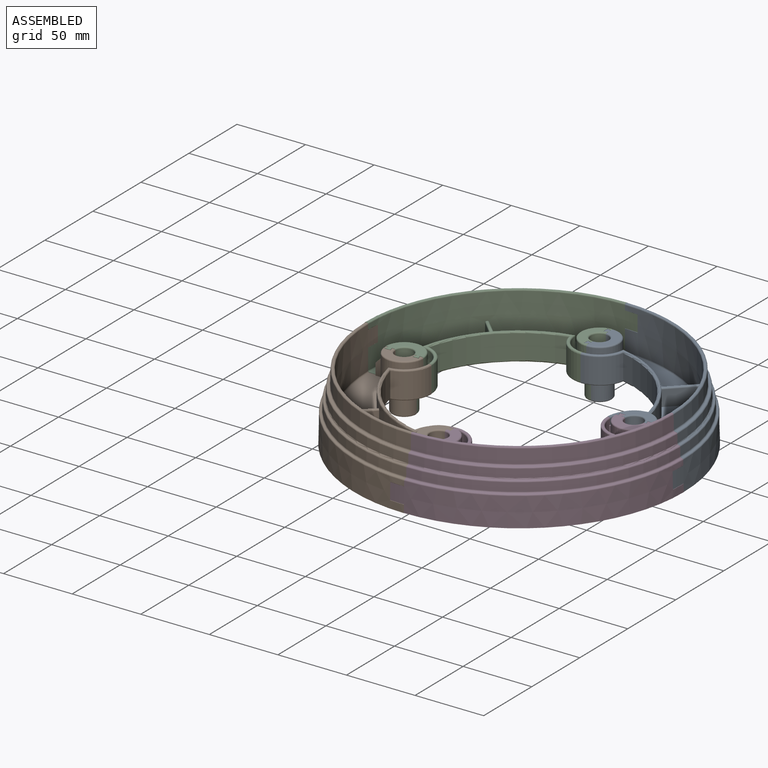
[diagram: assembled view]
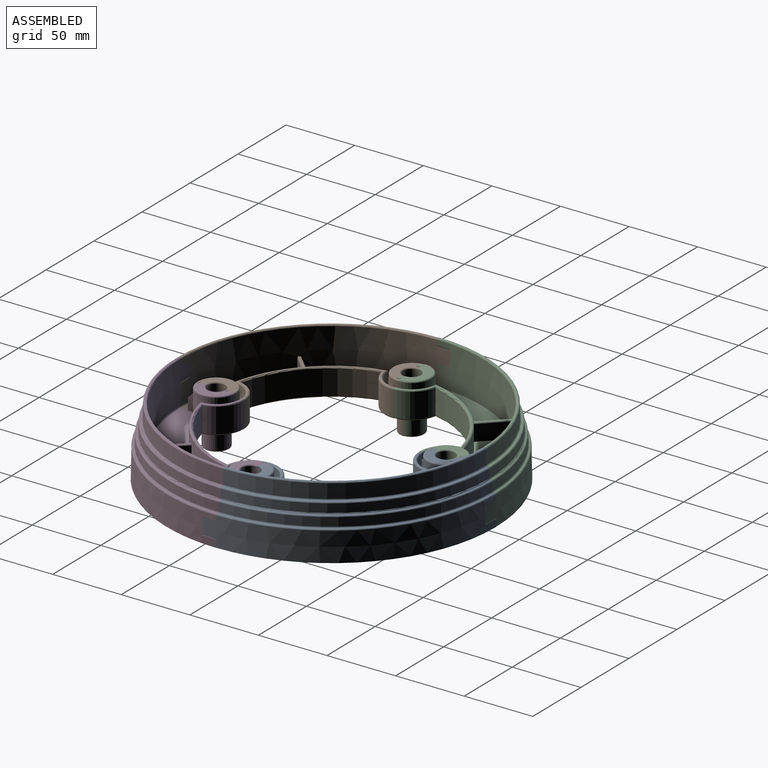
[diagram: assembled view, second angle]
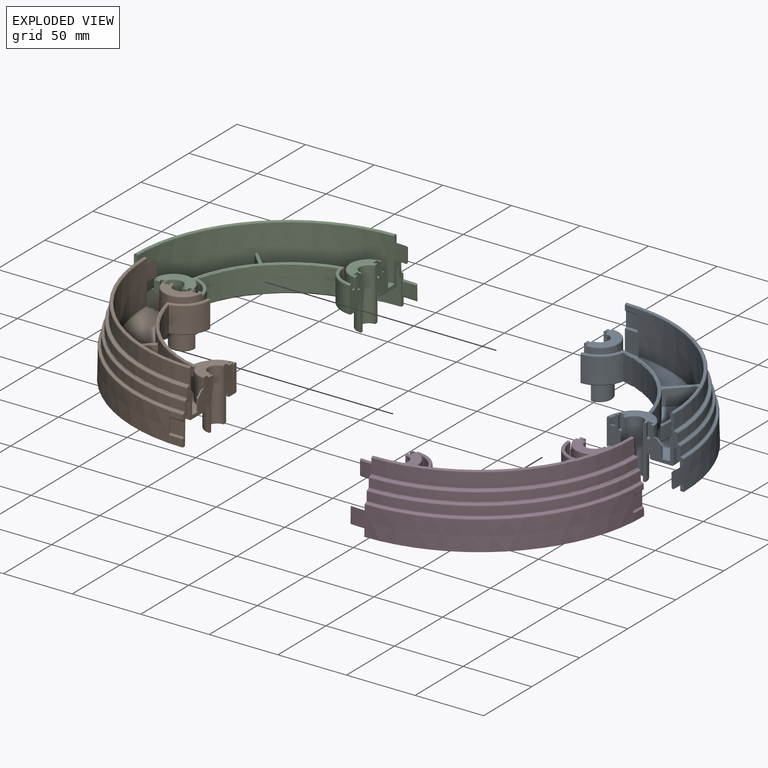
[diagram: exploded view]
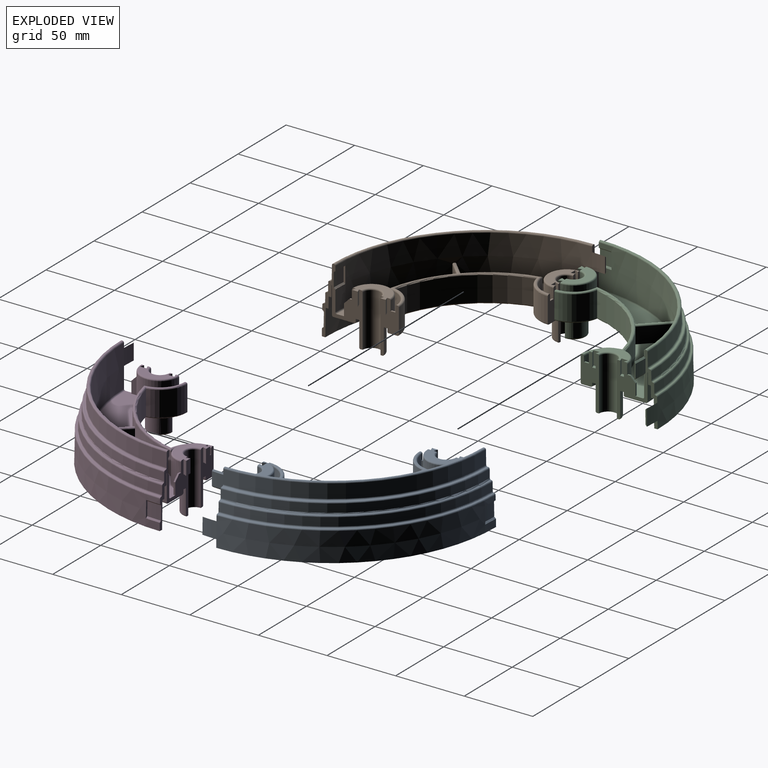
[diagram: exploded view, second angle]
ASSEMBLY  parts=4 mates=3
PART A: 144 faces, bbox 140x132.2x51 mm
  f0: plane 51x29.75mm, normal (0,-1,0), area 447.5mm2, adj f3,f4,f7,f14,f15,f16,f17,f18
  f1: cylinder r=11.5mm len=23mm, axis (0,0,-1), area 104.2mm2, adj f6,f12,f60,f61,f63,f64,f65,f66
  f2: cylinder r=9mm len=19mm, axis (0,0,-1), area 533.1mm2, adj f6,f12,f60,f61,f63,f64,f65,f66
  f3: cylinder r=11.5mm len=23mm, axis (0,0,-1), area 104.2mm2, adj f0,f5,f58,f59,f62,f68,f69,f70
  f4: cylinder r=9mm len=19mm, axis (0,0,-1), area 533.1mm2, adj f0,f5,f58,f59,f62,f68,f69,f70
  f5: plane 39x13.4mm, normal (0,-1,0), area 281.9mm2, adj f3,f4,f8,f13,f14,f32,f37,f38
  f6: plane 39x13.4mm, normal (1,0,0), area 279.7mm2, adj f1,f2,f13,f14,f33,f34,f39,f40
  f7: cone r=110.1mm half-angle=90deg, axis (0,0,1), area 1650.6mm2, adj f0,f10,f35,f37,f41,f42,f46,f92
  f8: cylinder r=17.5mm len=17.49mm, axis (0,0,-1), area 428.6mm2, adj f5,f10,f35,f44,f45,f89
  f9: cone r=110.1mm half-angle=90deg, axis (0,0,1), area 1650.6mm2, adj f10,f12,f36,f39,f47,f51,f52,f78
  f10: cylinder r=85.1mm len=65.79mm, axis (0,0,-1), area 1593.5mm2, adj f7,f8,f9,f33,f46,f47,f48,f79
  f11: cylinder r=82.6mm len=60.56mm, axis (0,0,-1), area 1620.5mm2, adj f32,f34,f85,f88
  f12: plane 51x29.75mm, normal (1,0,0), area 450.5mm2, adj f1,f2,f9,f14,f15,f16,f17,f18
  f13: plane 82.06x82.06mm, normal (0,0,1), area 74.4mm2, adj f5,f6,f83,f84,f85,f89,f90,f91
  f14: plane 111.6x111.6mm, normal (0,0,-1), area 4332.1mm2, adj f0,f5,f6,f12,f76,f77,f86,f87
  f15: cylinder r=112.6mm len=112.6mm, axis (0,0,-1), area 3449.4mm2, adj f0,f12,f16,f101
  f16: plane 112.86x112.86mm, normal (0,0,-1), area 46.1mm2, adj f0,f12,f15,f17
  f17: cone r=112.86mm half-angle=1deg, axis (0,0,-1), area 1419.2mm2, adj f0,f12,f16,f18
  f18: plane 115x115mm, normal (0,0,-1), area 358.2mm2, adj f0,f12,f17,f19
  f19: cone r=115mm half-angle=1deg, axis (0,0,-1), area 1447.6mm2, adj f0,f12,f18,f20
  f20: plane 117.15x117.15mm, normal (0,0,-1), area 364.9mm2, adj f0,f12,f19,f21
  f21: cone r=117.15mm half-angle=1deg, axis (0,0,-1), area 3593.6mm2, adj f0,f12,f20,f22
  f22: plane 120x120mm, normal (0,0,-1), area 466.4mm2, adj f0,f12,f21,f23
  f23: cone r=120mm half-angle=1deg, axis (0,0,-1), area 3953.4mm2, adj f0,f12,f22,f100,f128,f129,f131,f133
  f24: plane 118.62x118.62mm, normal (0,0,1), area 6.6mm2, adj f0,f12,f99,f100
  f25: cone r=117.6mm half-angle=1deg, axis (0,0,-1), area 1115.8mm2, adj f0,f12,f98,f99
  f26: plane 116.48x116.48mm, normal (0,0,1), area 6.5mm2, adj f0,f12,f97,f98
  f27: cone r=115.46mm half-angle=1deg, axis (0,0,-1), area 1094mm2, adj f0,f12,f96,f97
  f28: plane 114.33x114.33mm, normal (0,0,1), area 96mm2, adj f0,f12,f95,f96
  f29: cone r=112.82mm half-angle=1deg, axis (0,0,-1), area 1776.7mm2, adj f0,f12,f94,f95
  f30: plane 111.62x111.62mm, normal (0,0,1), area 90.6mm2, adj f0,f12,f93,f94
  f31: cone r=110.1mm half-angle=0deg, axis (0,0,-1), area 5244.5mm2, adj f0,f12,f46,f47,f48,f78,f79,f80
  f32: cylinder r=20mm len=19.67mm, axis (0,0,-1), area 499.9mm2, adj f5,f11,f83,f86
  f33: cylinder r=17.5mm len=17.49mm, axis (0,0,-1), area 428.6mm2, adj f6,f10,f36,f49,f50,f91
  f34: cylinder r=20mm len=19.67mm, axis (0,0,-1), area 499.9mm2, adj f6,f11,f84,f87
  f35: plane 17.55x16.24mm, normal (0,0,1), area 81.4mm2, adj f7,f8,f37,f44
  f36: plane 17.55x16.24mm, normal (0,0,1), area 81.4mm2, adj f9,f33,f39,f49
  f37: cylinder r=14mm len=28mm, axis (0,0,-1), area 826.4mm2, adj f0,f5,f7,f35,f41,f43,f44,f45
  f38: plane 26x15.73mm, normal (0,0,1), area 195mm2, adj f0,f5,f74,f82,f116,f117,f118,f120
  f39: cylinder r=14mm len=28mm, axis (0,0,-1), area 826.4mm2, adj f6,f9,f12,f36,f49,f50,f51,f53
  f40: plane 26x13mm, normal (0,0,1), area 157.2mm2, adj f6,f12,f75,f81,f108,f109,f110,f112
  f41: plane 12.53x6.05mm, normal (0,1,0), area 67.2mm2, adj f7,f37,f42,f43,f103
  f42: cylinder r=20mm len=8.5mm, axis (0,0,-1), area 10.6mm2, adj f0,f7,f41,f103
  f43: plane 2.06x1.25mm, normal (0,0,1), area 2.5mm2, adj f0,f37,f41,f103
  f44: plane 12.5x3.51mm, normal (0,1,0), area 43.9mm2, adj f8,f35,f37,f45
  f45: plane 3.56x1.25mm, normal (0,0,1), area 4.4mm2, adj f5,f8,f37,f44
  f46: plane 17.72x17.72mm, normal (-0.71,-0.71,0), area 287.3mm2, adj f7,f10,f31,f80,f92
  f47: plane 17.72x17.72mm, normal (0.71,0.71,0), area 287.3mm2, adj f9,f10,f31,f78,f79
  f48: plane 18.03x18.03mm, normal (0,0,1), area 12.5mm2, adj f10,f31,f79,f80
  f49: plane 12.5x3.51mm, normal (-1,0,0), area 43.9mm2, adj f33,f36,f39,f50
  f50: plane 3.56x1.25mm, normal (0,0,1), area 4.4mm2, adj f6,f33,f39,f49
  f51: plane 12.53x6.05mm, normal (-1,0,0), area 67.2mm2, adj f9,f39,f52,f53,f102
  f52: cylinder r=20mm len=8.5mm, axis (0,0,-1), area 10.6mm2, adj f9,f12,f51,f102
  f53: plane 2.06x1.25mm, normal (0,0,1), area 2.5mm2, adj f12,f39,f51,f102
  f54: cylinder r=6.5mm len=38mm, axis (0,0,-1), area 776mm2, adj f6,f12,f57,f75
  f55: cylinder r=6.5mm len=38mm, axis (0,0,-1), area 776mm2, adj f0,f5,f56,f74
  f56: plane 16x8mm, normal (0,0,-1), area 34.2mm2, adj f0,f5,f55,f73
  f57: plane 16x8mm, normal (0,0,-1), area 34.2mm2, adj f6,f12,f54,f72
  f58: plane 2.5x0.25mm, normal (0,0,-1), area 0.6mm2, adj f0,f3,f4,f71
  f59: plane 2.5x0.25mm, normal (0,0,-1), area 0.6mm2, adj f3,f4,f5,f70
  f60: plane 2.5x0.25mm, normal (0,0,-1), area 0.6mm2, adj f1,f2,f6,f65
  f61: plane 2.5x0.25mm, normal (0,0,-1), area 0.6mm2, adj f1,f2,f12,f64
  f62: plane 2.5x0.5mm, normal (0,0,-1), area 1.3mm2, adj f3,f4,f68,f69
  f63: plane 2.5x0.5mm, normal (0,0,-1), area 1.3mm2, adj f1,f2,f66,f67
  f64: cylinder r=1mm len=2.58mm, axis (0,-1,0), area 3.9mm2, adj f1,f2,f61,f107
  f65: cylinder r=1mm len=2.58mm, axis (0,-1,0), area 3.9mm2, adj f1,f2,f60,f106
  f66: cylinder r=1mm len=2.58mm, axis (-1,0,0), area 3.9mm2, adj f1,f2,f63,f107
  f67: cylinder r=1mm len=2.58mm, axis (1,0,0), area 3.9mm2, adj f1,f2,f63,f106
  f68: cylinder r=1mm len=2.58mm, axis (0,-1,0), area 3.9mm2, adj f3,f4,f62,f104
  f69: cylinder r=1mm len=2.58mm, axis (0,1,0), area 3.9mm2, adj f3,f4,f62,f105
  f70: cylinder r=1mm len=2.58mm, axis (-1,0,0), area 3.9mm2, adj f3,f4,f59,f105
  f71: cylinder r=1mm len=2.58mm, axis (-1,0,0), area 3.9mm2, adj f3,f4,f58,f104
  f72: torus R=8mm, axis (0,0,-1), area 42.6mm2, adj f2,f6,f12,f57
  f73: torus R=8mm, axis (0,0,-1), area 42.6mm2, adj f0,f4,f5,f56
  f74: torus R=7.5mm, axis (0,0,-1), area 33.9mm2, adj f0,f5,f38,f55
  f75: torus R=7.5mm, axis (0,0,-1), area 33.9mm2, adj f6,f12,f40,f54
  f76: torus R=12.5mm, axis (0,0,-1), area 58.5mm2, adj f1,f6,f12,f14
  f77: torus R=12.5mm, axis (0,0,-1), area 58.5mm2, adj f0,f3,f5,f14
  f78: torus R=109.1mm, axis (0,0,-1), area 133.4mm2, adj f9,f12,f31,f47
  f79: cylinder r=1mm len=18.39mm, axis (-0.71,0.71,0), area 39.3mm2, adj f10,f31,f47,f48
  f80: cylinder r=1mm len=18.39mm, axis (0.71,-0.71,0), area 39.3mm2, adj f10,f31,f46,f48
  f81: torus R=13mm, axis (0,0,-1), area 67.3mm2, adj f6,f12,f39,f40
  f82: torus R=13mm, axis (0,0,-1), area 67.3mm2, adj f0,f5,f37,f38
  f83: torus R=19mm, axis (0,0,1), area 43.7mm2, adj f5,f13,f32,f85
  f84: torus R=19mm, axis (0,0,1), area 43.7mm2, adj f6,f13,f34,f85
  f85: torus R=83.6mm, axis (0,0,1), area 143.7mm2, adj f11,f13,f83,f84
  f86: torus R=19mm, axis (0,0,-1), area 43.7mm2, adj f5,f14,f32,f88
  f87: torus R=19mm, axis (0,0,-1), area 43.7mm2, adj f6,f14,f34,f88
  f88: torus R=83.6mm, axis (0,0,-1), area 143.7mm2, adj f11,f14,f86,f87
  f89: torus R=18.5mm, axis (0,0,1), area 42.3mm2, adj f5,f8,f13,f90
  f90: torus R=84.1mm, axis (0,0,1), area 152.2mm2, adj f10,f13,f89,f91
  f91: torus R=18.5mm, axis (0,0,1), area 42.3mm2, adj f6,f13,f33,f90
  f92: torus R=109.1mm, axis (0,0,-1), area 133.4mm2, adj f0,f7,f31,f46
  f93: torus R=111.1mm, axis (0,0,1), area 272.6mm2, adj f0,f12,f30,f31
  f94: torus R=111.62mm, axis (0,0,1), area 273.8mm2, adj f0,f12,f29,f30
  f95: torus R=113.8mm, axis (0,0,1), area 276mm2, adj f0,f12,f28,f29
  f96: torus R=114.33mm, axis (0,0,1), area 280.4mm2, adj f0,f12,f27,f28
  f97: torus R=116.44mm, axis (0,0,1), area 282.5mm2, adj f0,f12,f26,f27
  f98: torus R=116.48mm, axis (0,0,1), area 285.6mm2, adj f0,f12,f25,f26
  f99: torus R=118.59mm, axis (0,0,1), area 287.7mm2, adj f0,f12,f24,f25
  f100: torus R=118.62mm, axis (0,0,1), area 290.9mm2, adj f0,f12,f23,f24
  f101: torus R=111.6mm, axis (0,0,-1), area 276.9mm2, adj f0,f12,f14,f15
  f102: cone r=20mm half-angle=45deg, axis (0,0,-1), area 7.1mm2, adj f12,f51,f52,f53
  f103: cone r=20mm half-angle=45deg, axis (0,0,-1), area 7.1mm2, adj f0,f41,f42,f43
  f104: plane 10.18x10.18mm, normal (0,0,-1), area 34mm2, adj f3,f4,f68,f71
  f105: plane 10.18x10.18mm, normal (0,0,-1), area 34mm2, adj f3,f4,f69,f70
  f106: plane 10.18x10.18mm, normal (0,0,-1), area 34mm2, adj f1,f2,f65,f67
  f107: plane 10.18x10.18mm, normal (0,0,-1), area 34mm2, adj f1,f2,f64,f66
  f108: plane 10x2.82mm, normal (-0.34,0.94,0), area 30mm2, adj f6,f40,f110,f111
  f109: plane 10x2.82mm, normal (-0.34,-0.94,0), area 30mm2, adj f6,f40,f110,f111
  f110: plane 10x4.45mm, normal (1,0,0), area 44.5mm2, adj f40,f108,f109,f111
  f111: plane 4.45x2.82mm, normal (0,0,1), area 9.7mm2, adj f6,f108,f109,f110
  f112: plane 10x2.82mm, normal (-0.34,0.94,0), area 30mm2, adj f12,f40,f114,f115
  f113: plane 10x2.82mm, normal (-0.34,-0.94,0), area 30mm2, adj f12,f40,f114,f115
  f114: plane 10x4.65mm, normal (1,0,0), area 46.5mm2, adj f40,f112,f113,f115
  f115: plane 4.65x2.82mm, normal (0,0,1), area 10.2mm2, adj f12,f112,f113,f114
  f116: plane 9.9x2.73mm, normal (-0.94,0.34,0), area 28.7mm2, adj f0,f38,f117,f119
  f117: plane 9.9x4.38mm, normal (0,-1,0), area 43.4mm2, adj f38,f116,f118,f119
  f118: plane 9.9x2.73mm, normal (0.94,0.34,0), area 28.7mm2, adj f0,f38,f117,f119
  f119: plane 4.38x2.73mm, normal (0,0,-1), area 9.2mm2, adj f0,f116,f117,f118
  f120: plane 9.9x2.73mm, normal (-0.94,0.34,0), area 28.7mm2, adj f5,f38,f121,f123
  f121: plane 9.9x4.18mm, normal (0,-1,0), area 41.4mm2, adj f38,f120,f122,f123
  f122: plane 9.9x2.73mm, normal (0.94,0.34,0), area 28.7mm2, adj f5,f38,f121,f123
  f123: plane 4.18x2.73mm, normal (0,0,-1), area 8.7mm2, adj f5,f120,f121,f122
  f124: cone r=110.1mm half-angle=90deg, axis (0,0,1), area 1.9mm2, adj f0,f31,f127,f136
  f125: plane 9.61x0.62mm, normal (0,0,-1), area 1.9mm2, adj f0,f31,f127,f137
  f126: cone r=111.3mm half-angle=0deg, axis (0,0,-1), area 97.1mm2, adj f0,f127,f136,f137
  f127: plane 12x1.2mm, normal (-0.09,-1,0), area 13.4mm2, adj f31,f124,f125,f126,f136,f137
  f128: cone r=119.69mm half-angle=89deg, axis (0,0,1), area 2.1mm2, adj f0,f23,f131,f139
  f129: cone r=118.7mm half-angle=89deg, axis (0,0,1), area 2.1mm2, adj f0,f23,f131,f138
  f130: cone r=118.49mm half-angle=1deg, axis (0,0,-1), area 103.5mm2, adj f0,f131,f138,f139
  f131: plane 12x1.39mm, normal (-0.09,-1,0), area 13.4mm2, adj f23,f128,f129,f130,f138,f139
  f132: cone r=118.9mm half-angle=1deg, axis (0,0,-1), area 101.6mm2, adj f12,f133,f142,f143
  f133: plane 11.8x1.19mm, normal (1,-0.09,0), area 10.8mm2, adj f23,f132,f142,f143
  f134: cone r=111.1mm half-angle=0deg, axis (0,0,-1), area 95mm2, adj f12,f135,f140,f141
  f135: plane 11.8x1mm, normal (1,-0.09,0), area 10.8mm2, adj f31,f134,f140,f141
  f136: cone r=110.3mm half-angle=45deg, axis (0,0,1), area 13.7mm2, adj f0,f124,f126,f127
  f137: cone r=111.3mm half-angle=45deg, axis (0,0,-1), area 13.7mm2, adj f0,f125,f126,f127
  f138: cone r=118.68mm half-angle=46deg, axis (0,0,-1), area 14.7mm2, adj f0,f129,f130,f131
  f139: cone r=119.49mm half-angle=44deg, axis (0,0,1), area 14.7mm2, adj f0,f128,f130,f131
  f140: cone r=111.1mm half-angle=45deg, axis (0,0,1), area 13.6mm2, adj f12,f31,f134,f135
  f141: cone r=110.1mm half-angle=45deg, axis (0,0,-1), area 13.6mm2, adj f12,f31,f134,f135
  f142: cone r=118.71mm half-angle=44deg, axis (0,0,1), area 14.7mm2, adj f12,f23,f132,f133
  f143: cone r=119.9mm half-angle=46deg, axis (0,0,-1), area 14.7mm2, adj f12,f23,f132,f133
PART B: same geometry as A
PART C: same geometry as A
PART D: same geometry as A
PLACE A rot(axis=(0,0,-1),90deg) t=(-95.6,-133.71,50.37)mm
PLACE B rot(axis=(0,0,1),90deg) t=(-95.62,-133.69,50.21)mm
PLACE C t=(-95.6,-133.69,50.44)mm
PLACE D rot(axis=(0,0,-1),180deg) t=(-95.62,-133.71,50.29)mm
MATE fastened D.f5 <-> A.f6  axis (0,1,0) through (-24.22,-133.71,22.78)mm
MATE fastened A.f5 <-> C.f6  axis (-1,0,0) through (-95.6,-62.31,22.86)mm
MATE fastened B.f5 <-> D.f6  axis (1,0,0) through (-95.62,-205.1,22.7)mm
